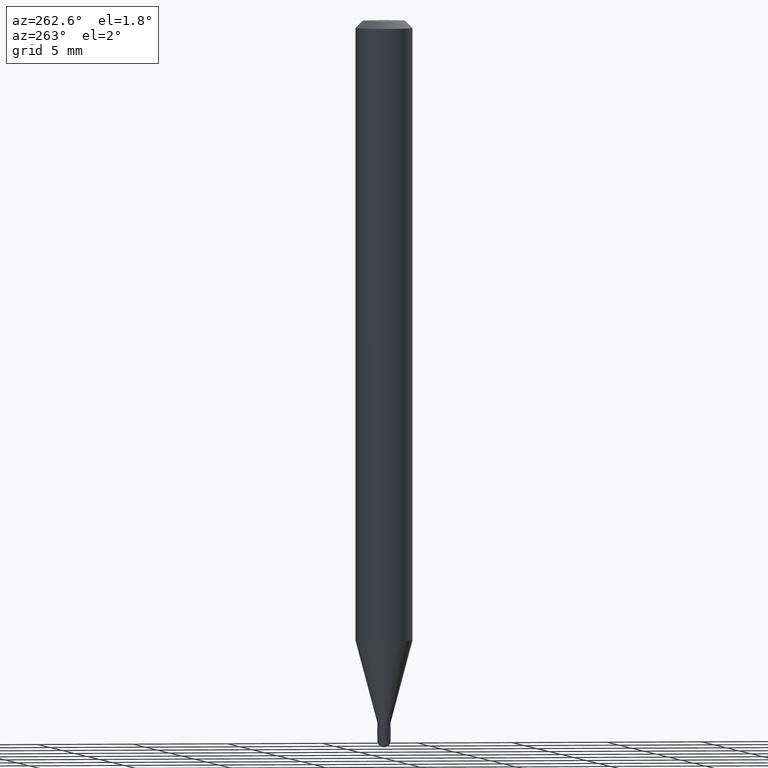
[diagram: clean part render]
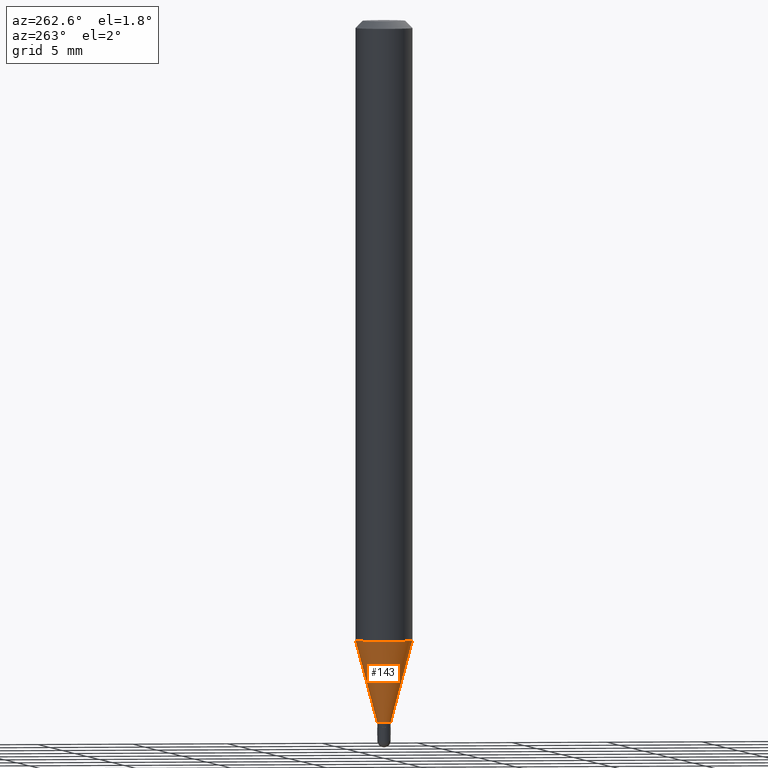
[diagram: same view with one face highlighted and labeled with its STEP entity id]
A machine part, auxiliary view. The second image highlights one B-rep face of the part: STEP entity #143.
In plain terms, the highlighted conical surface has half-angle 15 deg.
Its self-contained STEP definition (entity closure, byte-faithful):
#2 = DIRECTION ( 'NONE',  ( -2.445422202875732962E-29, 3.491548077434707223E-15, 1.000000000000000000 ) ) ;
#18 = ORIENTED_EDGE ( 'NONE', *, *, #446, .F. ) ;
#20 = VECTOR ( 'NONE', #279, 39.37007874015748143 ) ;
#23 = ORIENTED_EDGE ( 'NONE', *, *, #457, .T. ) ;
#25 = CARTESIAN_POINT ( 'NONE',  ( -9.636488495203459207E-17, -0.01380000000000496801, -1.445099999999999829 ) ) ;
#43 = CIRCLE ( 'NONE', #376, 0.01379999999999992344 ) ;
#48 = DIRECTION ( 'NONE',  ( -2.445422202875732962E-29, 3.491548077434707223E-15, 1.000000000000000000 ) ) ;
#72 = LINE ( 'NONE', #25, #95 ) ;
#95 = VECTOR ( 'NONE', #160, 39.37007874015748143 ) ;
#112 = DIRECTION ( 'NONE',  ( -2.445422202875732962E-29, 3.491548077434707223E-15, 1.000000000000000000 ) ) ;
#123 = LINE ( 'NONE', #275, #20 ) ;
#136 = EDGE_LOOP ( 'NONE', ( #450, #188, #23, #18 ) ) ;
#143 = ADVANCED_FACE ( 'NONE', ( #200 ), #155, .T. ) ;
#155 = CONICAL_SURFACE ( 'NONE', #171, 0.01379999999999992344, 0.2617993877991502960 ) ;
#160 = DIRECTION ( 'NONE',  ( -1.807323732225330928E-15, -0.2588190451025182970, 0.9659258262890689783 ) ) ;
#171 = AXIS2_PLACEMENT_3D ( 'NONE', #319, #2, #476 ) ;
#188 = ORIENTED_EDGE ( 'NONE', *, *, #256, .T. ) ;
#200 = FACE_OUTER_BOUND ( 'NONE', #136, .T. ) ;
#207 = CARTESIAN_POINT ( 'NONE',  ( -4.123439461173428234E-16, -0.05905000000000445309, -1.276224700957508285 ) ) ;
#227 = AXIS2_PLACEMENT_3D ( 'NONE', #418, #112, #303 ) ;
#233 = EDGE_CURVE ( 'NONE', #250, #388, #123, .T. ) ;
#246 = CIRCLE ( 'NONE', #227, 0.05904999999999999832 ) ;
#250 = VERTEX_POINT ( 'NONE', #428 ) ;
#256 = EDGE_CURVE ( 'NONE', #250, #328, #43, .T. ) ;
#275 = CARTESIAN_POINT ( 'NONE',  ( 9.805489753492859550E-17, 0.01379999999999487886, -1.445099999999999829 ) ) ;
#279 = DIRECTION ( 'NONE',  ( 1.839019923739601104E-15, 0.2588190451025250693, 0.9659258262890670910 ) ) ;
#303 = DIRECTION ( 'NONE',  ( -6.982962677686265922E-15, -1.000000000000000000, 4.626330217890369336E-15 ) ) ;
#319 = CARTESIAN_POINT ( 'NONE',  ( 3.533879625375720671E-29, -5.045636126700895725E-15, -1.445099999999999829 ) ) ;
#327 = DIRECTION ( 'NONE',  ( -6.982962677686265922E-15, -1.000000000000000000, 0.000000000000000000 ) ) ;
#328 = VERTEX_POINT ( 'NONE', #438 ) ;
#334 = CARTESIAN_POINT ( 'NONE',  ( 4.195754854663701599E-16, 0.05904999999999552274, -1.276224700957508729 ) ) ;
#364 = VERTEX_POINT ( 'NONE', #207 ) ;
#376 = AXIS2_PLACEMENT_3D ( 'NONE', #397, #48, #327 ) ;
#388 = VERTEX_POINT ( 'NONE', #334 ) ;
#397 = CARTESIAN_POINT ( 'NONE',  ( 3.533879625375720671E-29, -5.045636126700895725E-15, -1.445099999999999829 ) ) ;
#418 = CARTESIAN_POINT ( 'NONE',  ( 3.120908219579933715E-29, -4.455999901002872408E-15, -1.276224700957508507 ) ) ;
#428 = CARTESIAN_POINT ( 'NONE',  ( 2.588151915006495688E-16, 0.01379999999999487886, -1.445099999999999829 ) ) ;
#438 = CARTESIAN_POINT ( 'NONE',  ( -9.636488495203459207E-17, -0.01380000000000496801, -1.445099999999999829 ) ) ;
#446 = EDGE_CURVE ( 'NONE', #388, #364, #246, .T. ) ;
#450 = ORIENTED_EDGE ( 'NONE', *, *, #233, .F. ) ;
#457 = EDGE_CURVE ( 'NONE', #328, #364, #72, .T. ) ;
#476 = DIRECTION ( 'NONE',  ( -6.982962677686265922E-15, -1.000000000000000000, 0.000000000000000000 ) ) ;